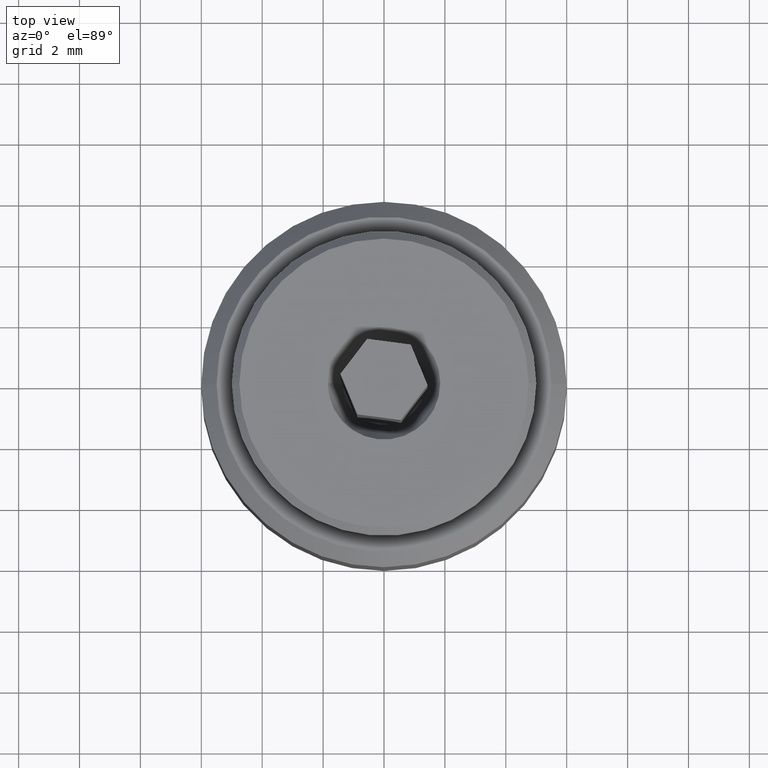
[diagram: clean part render]
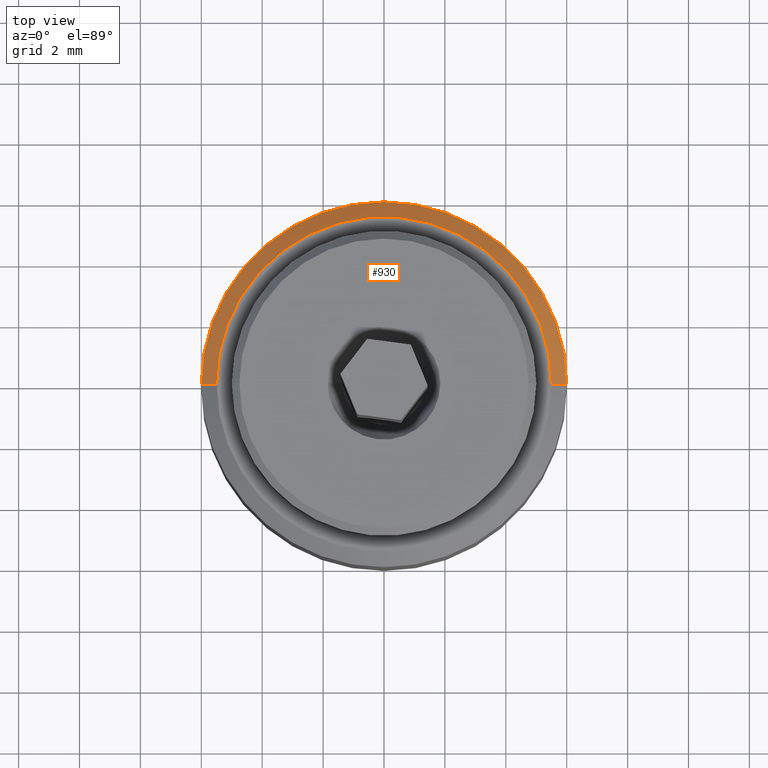
[diagram: same view with one face highlighted and labeled with its STEP entity id]
A machine part, top view. The second image highlights one B-rep face of the part: STEP entity #930.
In plain terms, the highlighted conical surface has half-angle 45 deg.
Its self-contained STEP definition (entity closure, byte-faithful):
#8 = VERTEX_POINT ( 'NONE', #840 ) ;
#38 = FACE_OUTER_BOUND ( 'NONE', #867, .T. ) ;
#44 = DIRECTION ( 'NONE',  ( -1.000000000000000000, 0.000000000000000000, 0.000000000000000000 ) ) ;
#105 = ORIENTED_EDGE ( 'NONE', *, *, #243, .F. ) ;
#129 = EDGE_CURVE ( 'NONE', #203, #8, #402, .T. ) ;
#143 = EDGE_CURVE ( 'NONE', #203, #589, #737, .T. ) ;
#174 = DIRECTION ( 'NONE',  ( 0.000000000000000000, 0.000000000000000000, 1.000000000000000000 ) ) ;
#179 = DIRECTION ( 'NONE',  ( 1.000000000000000000, 0.000000000000000000, 0.000000000000000000 ) ) ;
#203 = VERTEX_POINT ( 'NONE', #966 ) ;
#243 = EDGE_CURVE ( 'NONE', #589, #946, #649, .T. ) ;
#264 = CARTESIAN_POINT ( 'NONE',  ( 0.000000000000000000, 0.000000000000000000, 7.500000000000000000 ) ) ;
#270 = CARTESIAN_POINT ( 'NONE',  ( 6.000000000000000888, 7.347880794884120722E-16, 7.500000000000000000 ) ) ;
#357 = DIRECTION ( 'NONE',  ( 1.000000000000000000, 0.000000000000000000, 0.000000000000000000 ) ) ;
#391 = EDGE_CURVE ( 'NONE', #946, #8, #458, .T. ) ;
#402 = LINE ( 'NONE', #270, #704 ) ;
#423 = DIRECTION ( 'NONE',  ( -0.000000000000000000, -0.000000000000000000, -1.000000000000000000 ) ) ;
#458 = CIRCLE ( 'NONE', #684, 6.000000000000000888 ) ;
#481 = DIRECTION ( 'NONE',  ( 0.7071067811865474617, 8.659560562354932858E-17, -0.7071067811865474617 ) ) ;
#507 = ORIENTED_EDGE ( 'NONE', *, *, #129, .T. ) ;
#577 = CARTESIAN_POINT ( 'NONE',  ( 0.000000000000000000, 0.000000000000000000, 7.500000000000000000 ) ) ;
#589 = VERTEX_POINT ( 'NONE', #710 ) ;
#607 = CARTESIAN_POINT ( 'NONE',  ( -6.000000000000000888, 0.000000000000000000, 7.500000000000000000 ) ) ;
#627 = CARTESIAN_POINT ( 'NONE',  ( -6.000000000000000888, 0.000000000000000000, 7.500000000000000000 ) ) ;
#649 = LINE ( 'NONE', #627, #825 ) ;
#677 = AXIS2_PLACEMENT_3D ( 'NONE', #264, #423, #44 ) ;
#684 = AXIS2_PLACEMENT_3D ( 'NONE', #577, #983, #357 ) ;
#699 = DIRECTION ( 'NONE',  ( -0.7071067811865474617, 0.000000000000000000, -0.7071067811865474617 ) ) ;
#704 = VECTOR ( 'NONE', #481, 1000.000000000000114 ) ;
#710 = CARTESIAN_POINT ( 'NONE',  ( -5.500000000000000888, 0.000000000000000000, 8.000000000000000000 ) ) ;
#714 = ORIENTED_EDGE ( 'NONE', *, *, #391, .F. ) ;
#737 = CIRCLE ( 'NONE', #988, 5.500000000000000888 ) ;
#785 = CARTESIAN_POINT ( 'NONE',  ( 0.000000000000000000, 0.000000000000000000, 8.000000000000000000 ) ) ;
#814 = CONICAL_SURFACE ( 'NONE', #677, 6.000000000000000888, 0.7853981633974482790 ) ;
#821 = ORIENTED_EDGE ( 'NONE', *, *, #143, .F. ) ;
#825 = VECTOR ( 'NONE', #699, 1000.000000000000114 ) ;
#840 = CARTESIAN_POINT ( 'NONE',  ( 6.000000000000000888, 7.347880794884120722E-16, 7.500000000000000000 ) ) ;
#867 = EDGE_LOOP ( 'NONE', ( #821, #507, #714, #105 ) ) ;
#930 = ADVANCED_FACE ( 'NONE', ( #38 ), #814, .T. ) ;
#946 = VERTEX_POINT ( 'NONE', #607 ) ;
#966 = CARTESIAN_POINT ( 'NONE',  ( 5.500000000000000888, 7.041719095097281866E-16, 8.000000000000000000 ) ) ;
#983 = DIRECTION ( 'NONE',  ( -0.000000000000000000, -0.000000000000000000, -1.000000000000000000 ) ) ;
#988 = AXIS2_PLACEMENT_3D ( 'NONE', #785, #174, #179 ) ;